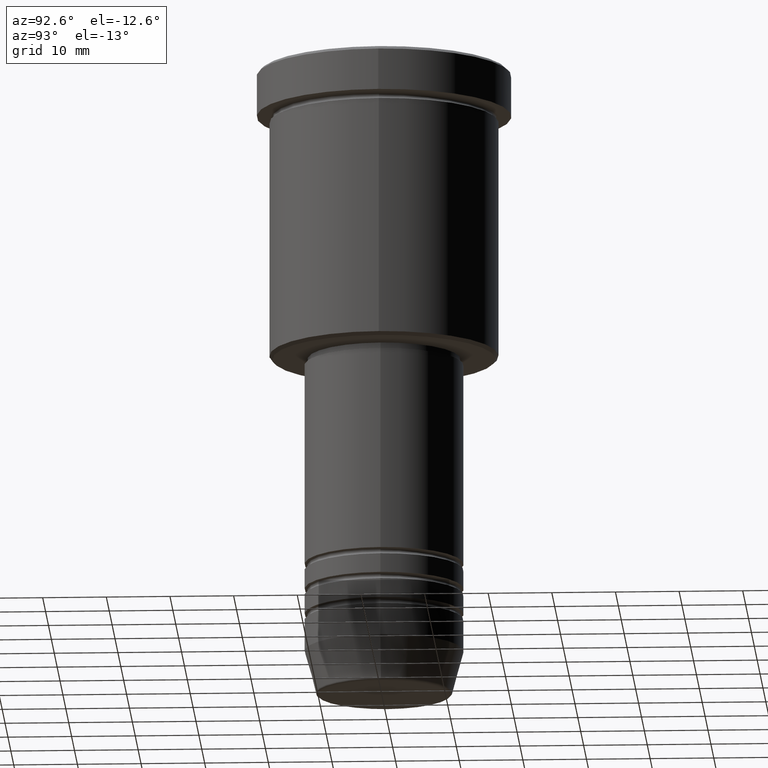
[diagram: clean part render]
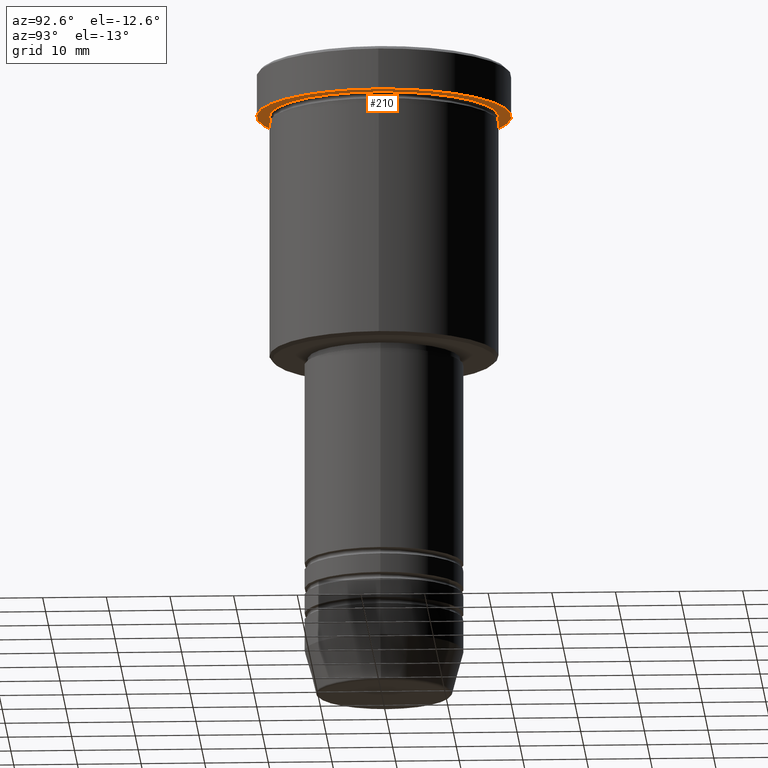
[diagram: same view with one face highlighted and labeled with its STEP entity id]
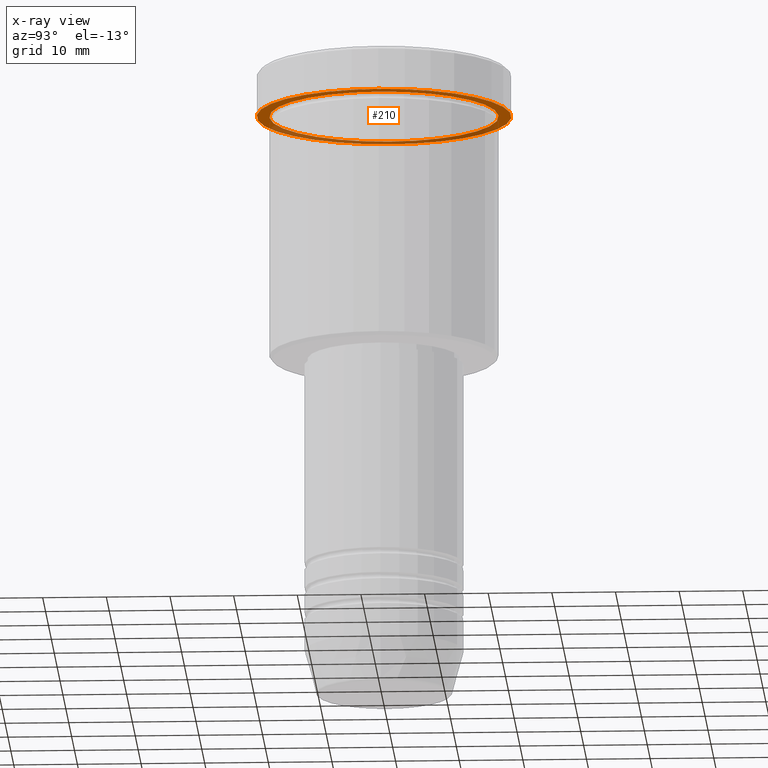
[diagram: x-ray of the same camera — body ghosted, the highlighted face saturated]
A machine part, auxiliary view. The second image highlights one B-rep face of the part: STEP entity #210.
The next image is the same camera in x-ray: the body ghosted, the highlighted face saturated — about 37% of this face is hidden behind the body in this view.
In plain terms, the highlighted planar face has unit normal (0, 0, -1).
Its self-contained STEP definition (entity closure, byte-faithful):
#41 = FACE_BOUND ( 'NONE', #935, .T. ) ;
#45 = VERTEX_POINT ( 'NONE', #229 ) ;
#54 = CARTESIAN_POINT ( 'NONE',  ( 20.00000000000000000, 0.000000000000000000, -6.999999999999995559 ) ) ;
#68 = AXIS2_PLACEMENT_3D ( 'NONE', #824, #196, #365 ) ;
#127 = EDGE_CURVE ( 'NONE', #701, #45, #172, .T. ) ;
#128 = DIRECTION ( 'NONE',  ( -0.000000000000000000, -0.000000000000000000, 1.000000000000000000 ) ) ;
#170 = AXIS2_PLACEMENT_3D ( 'NONE', #844, #128, #303 ) ;
#172 = CIRCLE ( 'NONE', #170, 18.00000000000000000 ) ;
#196 = DIRECTION ( 'NONE',  ( -0.000000000000000000, -0.000000000000000000, 1.000000000000000000 ) ) ;
#210 = ADVANCED_FACE ( 'NONE', ( #41, #665 ), #594, .T. ) ;
#229 = CARTESIAN_POINT ( 'NONE',  ( 18.00000000000000000, 2.204364238465235428E-15, -6.999999999999995559 ) ) ;
#283 = DIRECTION ( 'NONE',  ( -0.000000000000000000, -0.000000000000000000, 1.000000000000000000 ) ) ;
#296 = CARTESIAN_POINT ( 'NONE',  ( -20.00000000000000000, 2.449293598294706513E-15, -6.999999999999995559 ) ) ;
#303 = DIRECTION ( 'NONE',  ( -1.000000000000000000, 0.000000000000000000, 0.000000000000000000 ) ) ;
#360 = ORIENTED_EDGE ( 'NONE', *, *, #127, .T. ) ;
#365 = DIRECTION ( 'NONE',  ( 1.000000000000000000, 0.000000000000000000, 0.000000000000000000 ) ) ;
#414 = EDGE_CURVE ( 'NONE', #997, #699, #832, .T. ) ;
#478 = EDGE_CURVE ( 'NONE', #45, #701, #833, .T. ) ;
#511 = ORIENTED_EDGE ( 'NONE', *, *, #478, .T. ) ;
#514 = CARTESIAN_POINT ( 'NONE',  ( -18.00000000000000000, 0.000000000000000000, -6.999999999999995559 ) ) ;
#552 = DIRECTION ( 'NONE',  ( -0.000000000000000000, -0.000000000000000000, 1.000000000000000000 ) ) ;
#554 = ORIENTED_EDGE ( 'NONE', *, *, #1026, .F. ) ;
#575 = CARTESIAN_POINT ( 'NONE',  ( 0.000000000000000000, 0.000000000000000000, -6.999999999999995559 ) ) ;
#585 = DIRECTION ( 'NONE',  ( 0.000000000000000000, 0.000000000000000000, -1.000000000000000000 ) ) ;
#594 = PLANE ( 'NONE',  #978 ) ;
#600 = AXIS2_PLACEMENT_3D ( 'NONE', #575, #552, #1099 ) ;
#619 = CIRCLE ( 'NONE', #742, 20.00000000000000000 ) ;
#641 = DIRECTION ( 'NONE',  ( 1.000000000000000000, 0.000000000000000000, 0.000000000000000000 ) ) ;
#665 = FACE_OUTER_BOUND ( 'NONE', #1090, .T. ) ;
#699 = VERTEX_POINT ( 'NONE', #54 ) ;
#701 = VERTEX_POINT ( 'NONE', #514 ) ;
#742 = AXIS2_PLACEMENT_3D ( 'NONE', #743, #283, #641 ) ;
#743 = CARTESIAN_POINT ( 'NONE',  ( 0.000000000000000000, 0.000000000000000000, -6.999999999999995559 ) ) ;
#824 = CARTESIAN_POINT ( 'NONE',  ( 0.000000000000000000, 0.000000000000000000, -6.999999999999995559 ) ) ;
#832 = CIRCLE ( 'NONE', #68, 20.00000000000000000 ) ;
#833 = CIRCLE ( 'NONE', #600, 18.00000000000000000 ) ;
#844 = CARTESIAN_POINT ( 'NONE',  ( 0.000000000000000000, 0.000000000000000000, -6.999999999999995559 ) ) ;
#935 = EDGE_LOOP ( 'NONE', ( #360, #511 ) ) ;
#978 = AXIS2_PLACEMENT_3D ( 'NONE', #1022, #585, #1114 ) ;
#996 = ORIENTED_EDGE ( 'NONE', *, *, #414, .F. ) ;
#997 = VERTEX_POINT ( 'NONE', #296 ) ;
#1022 = CARTESIAN_POINT ( 'NONE',  ( 0.000000000000000000, 20.00000000000000000, -6.999999999999995559 ) ) ;
#1026 = EDGE_CURVE ( 'NONE', #699, #997, #619, .T. ) ;
#1090 = EDGE_LOOP ( 'NONE', ( #554, #996 ) ) ;
#1099 = DIRECTION ( 'NONE',  ( -1.000000000000000000, 0.000000000000000000, 0.000000000000000000 ) ) ;
#1114 = DIRECTION ( 'NONE',  ( -1.000000000000000000, 0.000000000000000000, -0.000000000000000000 ) ) ;